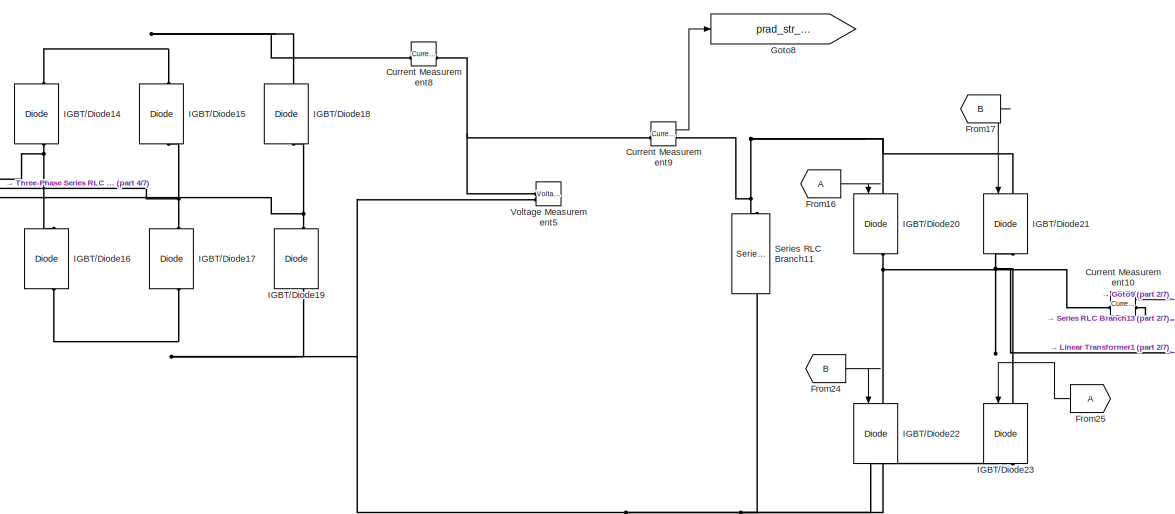
[diagram: root canvas - part 1/7, top left region]
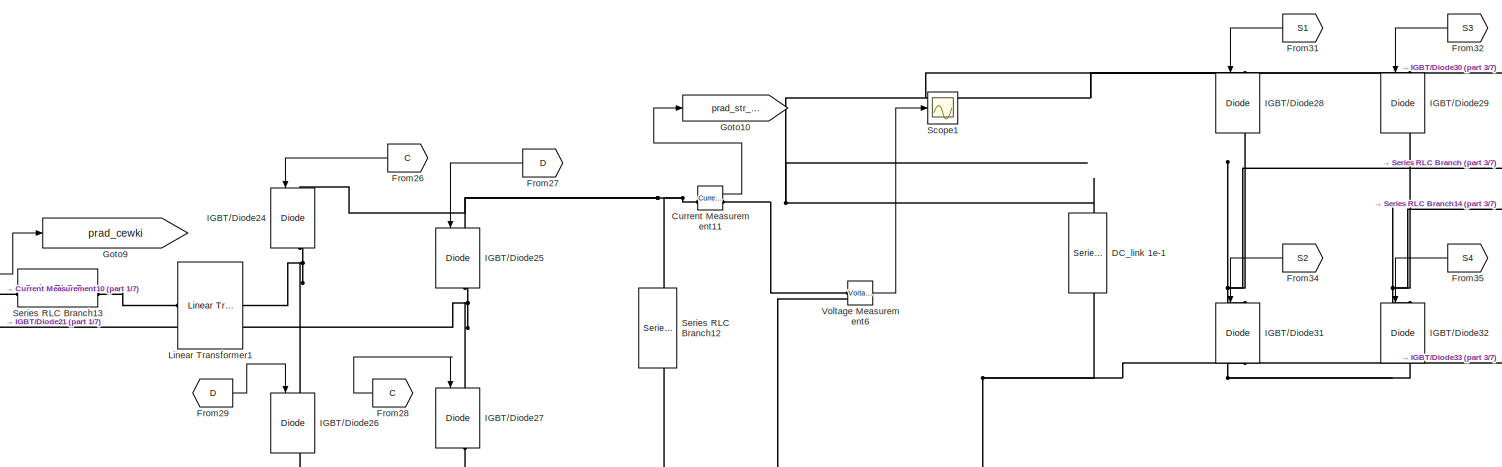
[diagram: root canvas - part 2/7, top center region]
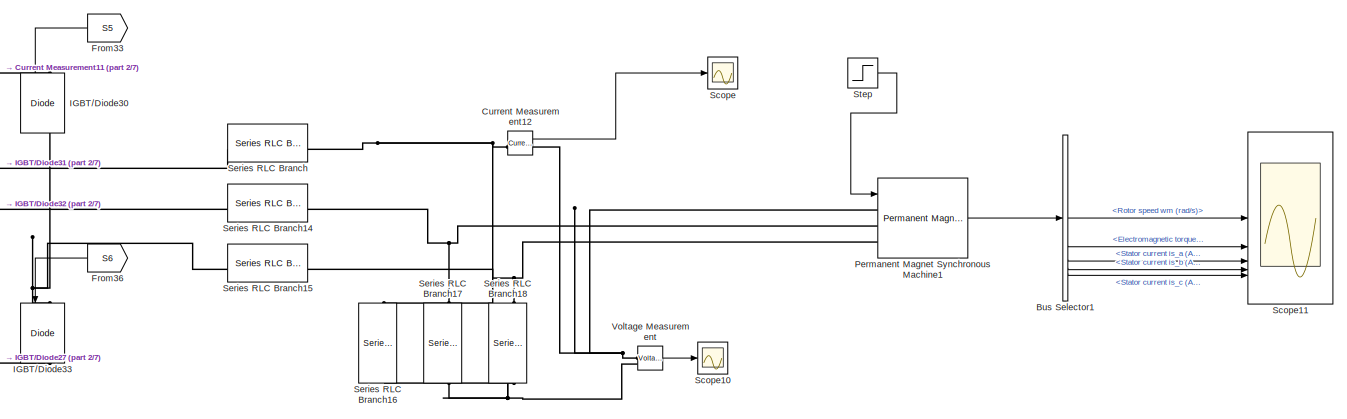
[diagram: root canvas - part 3/7, top right region]
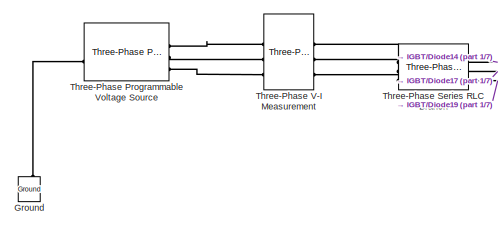
[diagram: root canvas - part 4/7, top left region]
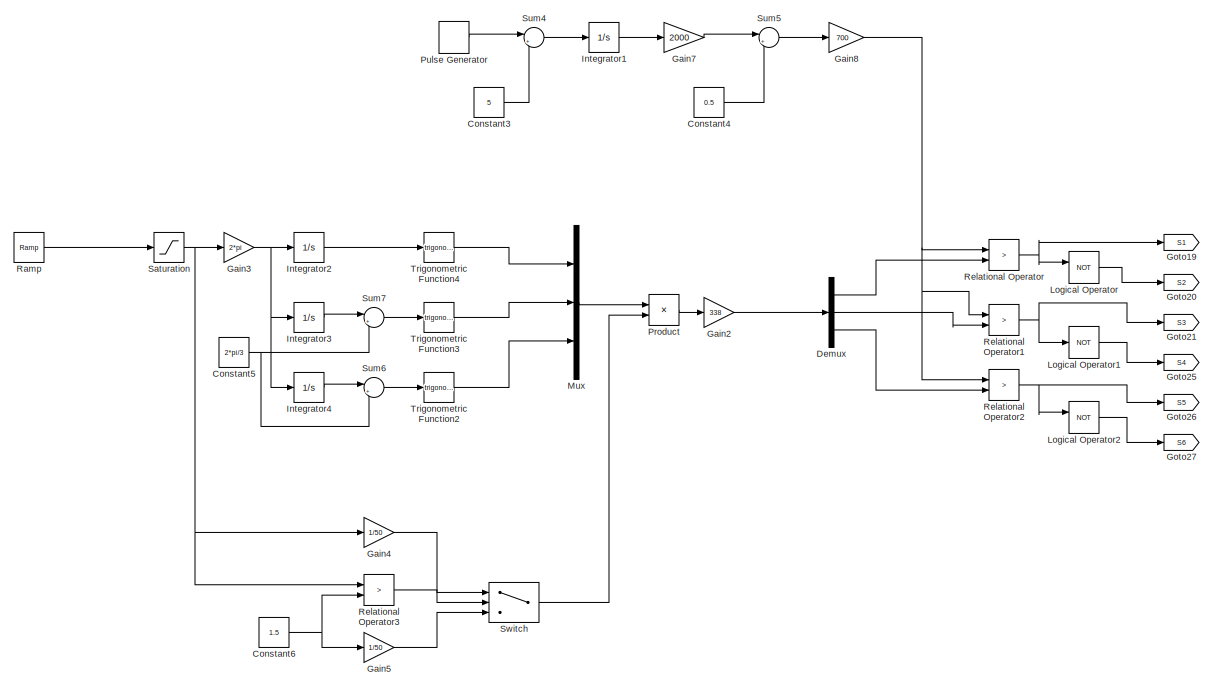
[diagram: root canvas - part 5/7, middle right region]
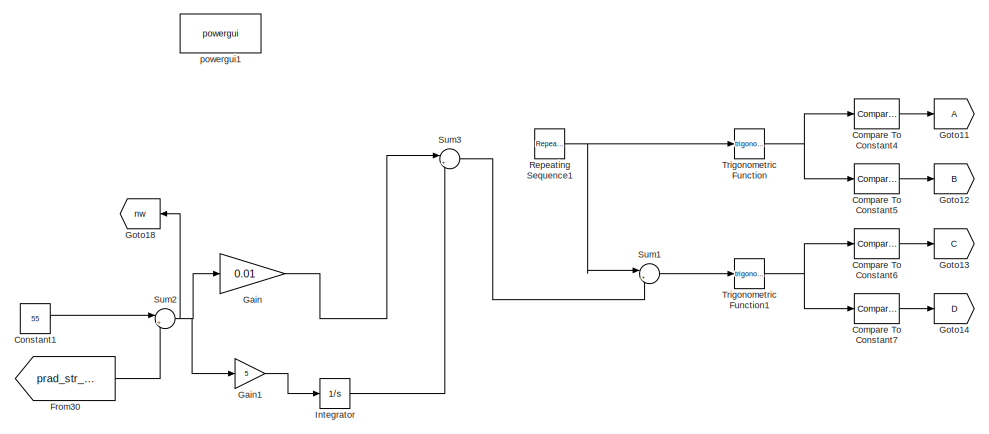
[diagram: root canvas - part 6/7, central region]
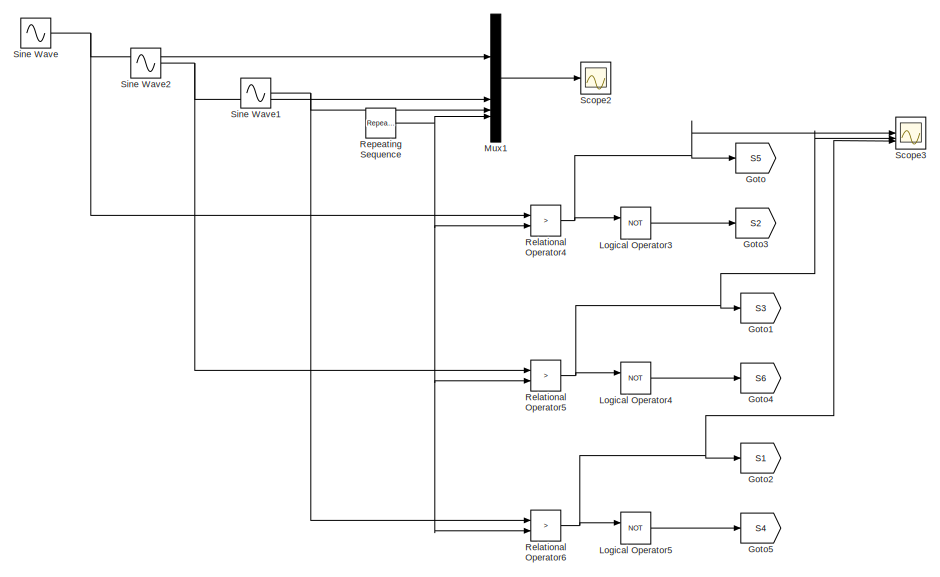
[diagram: root canvas - part 7/7, bottom center region]
MODEL slx_3110d4d27b88
KIND model
CONFIG AbsTol = auto
CONFIG EnableMultiTasking = off
CONFIG FixedStep = 1e-7
CONFIG MaxStep = auto
CONFIG MinStep = auto
CONFIG RelTol = 1e-3
CONFIG SampleTimeConstraint = Unconstrained
CONFIG SolverName = ode1
CONFIG StartTime = 0.0
CONFIG StopTime = 0.1
BLOCK [BusSelector] Bus Selector1
  OutputSignals = Rotor speed wm (rad/s),Electromagnetic torque Te (N*m),Stator current is_a (A),Stator current is_b (A),Stator current is_c (A)
BLOCK [Reference] Compare To Constant4  REF=simulink/Logic and Bit
Operations/Compare
To Constant
  SourceBlock = simulink/Logic and Bit\nOperations/Compare\nTo Constant
  SourceType = Compare To Constant
BLOCK [Reference] Compare To Constant5  REF=simulink/Logic and Bit
Operations/Compare
To Constant
  SourceBlock = simulink/Logic and Bit\nOperations/Compare\nTo Constant
  SourceType = Compare To Constant
BLOCK [Reference] Compare To Constant6  REF=simulink/Logic and Bit
Operations/Compare
To Constant
  SourceBlock = simulink/Logic and Bit\nOperations/Compare\nTo Constant
  SourceType = Compare To Constant
BLOCK [Reference] Compare To Constant7  REF=simulink/Logic and Bit
Operations/Compare
To Constant
  SourceBlock = simulink/Logic and Bit\nOperations/Compare\nTo Constant
  SourceType = Compare To Constant
BLOCK [Constant] Constant1
  Value = 55
BLOCK [Constant] Constant3
  Commented = on
  Value = 5
BLOCK [Constant] Constant4
  Commented = on
  Value = 0.5
BLOCK [Constant] Constant5
  Commented = on
  Value = 2*pi/3
BLOCK [Constant] Constant6
  Commented = on
  Value = 1.5
BLOCK [Reference] Current Measurement10  REF=spsCurrentMeasurementLib/Current Measurement
  SourceBlock = spsCurrentMeasurementLib/Current Measurement
  SourceType = Current Measurement
  UserDataPersistent = on
BLOCK [Reference] Current Measurement11  REF=spsCurrentMeasurementLib/Current Measurement
  SourceBlock = spsCurrentMeasurementLib/Current Measurement
  SourceType = Current Measurement
  UserDataPersistent = on
BLOCK [Reference] Current Measurement12  REF=spsCurrentMeasurementLib/Current Measurement
  SourceBlock = spsCurrentMeasurementLib/Current Measurement
  SourceType = Current Measurement
  UserDataPersistent = on
BLOCK [Reference] Current Measurement8  REF=spsCurrentMeasurementLib/Current Measurement
  SourceBlock = spsCurrentMeasurementLib/Current Measurement
  SourceType = Current Measurement
  UserDataPersistent = on
BLOCK [Reference] Current Measurement9  REF=spsCurrentMeasurementLib/Current Measurement
  SourceBlock = spsCurrentMeasurementLib/Current Measurement
  SourceType = Current Measurement
  UserDataPersistent = on
BLOCK [Reference] DC_link 1e-1  REF=spsSeriesRLCBranchLib/Series RLC Branch
  NameLocation = left
  SourceBlock = spsSeriesRLCBranchLib/Series RLC Branch
  SourceType = Series RLC Branch
BLOCK [Demux] Demux
  Commented = on
  Outputs = 3
BLOCK [From] From16
BLOCK [From] From17
  GotoTag = B
BLOCK [From] From24
  GotoTag = B
BLOCK [From] From25
  NameLocation = top
BLOCK [From] From26
  GotoTag = C
  NameLocation = top
BLOCK [From] From27
  GotoTag = D
  NameLocation = top
BLOCK [From] From28
  GotoTag = C
  NameLocation = top
BLOCK [From] From29
  GotoTag = D
BLOCK [From] From30
  GotoTag = prad_str_wtorna
BLOCK [From] From31
  GotoTag = S1
  NameLocation = top
BLOCK [From] From32
  GotoTag = S3
  NameLocation = top
BLOCK [From] From33
  GotoTag = S5
  NameLocation = top
BLOCK [From] From34
  GotoTag = S2
  NameLocation = top
BLOCK [From] From35
  GotoTag = S4
  NameLocation = top
BLOCK [From] From36
  GotoTag = S6
  NameLocation = top
BLOCK [Gain] Gain
  Gain = 0.01
BLOCK [Gain] Gain1
  Gain = 5
BLOCK [Gain] Gain2
  Commented = on
  Gain = 338
BLOCK [Gain] Gain3
  Commented = on
  Gain = 2*pi
BLOCK [Gain] Gain4
  Commented = on
  Gain = 1/50
BLOCK [Gain] Gain5
  Commented = on
  Gain = 1/50
BLOCK [Gain] Gain7
  Commented = on
  Gain = 2000
BLOCK [Gain] Gain8
  Commented = on
  Gain = 700
BLOCK [Goto] Goto
  GotoTag = S5
BLOCK [Goto] Goto1
  GotoTag = S3
BLOCK [Goto] Goto10
  GotoTag = prad_str_wtorna
BLOCK [Goto] Goto11
BLOCK [Goto] Goto12
  GotoTag = B
BLOCK [Goto] Goto13
  GotoTag = C
BLOCK [Goto] Goto14
  GotoTag = D
BLOCK [Goto] Goto18
  GotoTag = nw
  NameLocation = top
BLOCK [Goto] Goto19
  Commented = on
  GotoTag = S1
BLOCK [Goto] Goto2
  GotoTag = S1
BLOCK [Goto] Goto20
  Commented = on
  GotoTag = S2
BLOCK [Goto] Goto21
  Commented = on
  GotoTag = S3
BLOCK [Goto] Goto25
  Commented = on
  GotoTag = S4
BLOCK [Goto] Goto26
  Commented = on
  GotoTag = S5
BLOCK [Goto] Goto27
  Commented = on
  GotoTag = S6
BLOCK [Goto] Goto3
  GotoTag = S2
BLOCK [Goto] Goto4
  GotoTag = S6
BLOCK [Goto] Goto5
  GotoTag = S4
BLOCK [Goto] Goto8
  GotoTag = prad_str_pierwotna
BLOCK [Goto] Goto9
  GotoTag = prad_cewki
BLOCK [Reference] Ground  REF=spsGroundLib/Ground
  LibrarySourceBlock = sps_lib/Utilities/Ground
  NameLocation = right
  SourceBlock = spsGroundLib/Ground
  SourceType = Ground
BLOCK [Reference] IGBT//Diode14  REF=spsIGBTDiodeLib/IGBT//Diode
  NameLocation = left
  SourceBlock = spsIGBTDiodeLib/IGBT//Diode
  SourceType = IGBT/Diode
BLOCK [Reference] IGBT//Diode15  REF=spsIGBTDiodeLib/IGBT//Diode
  NameLocation = left
  SourceBlock = spsIGBTDiodeLib/IGBT//Diode
  SourceType = IGBT/Diode
BLOCK [Reference] IGBT//Diode16  REF=spsIGBTDiodeLib/IGBT//Diode
  NameLocation = left
  SourceBlock = spsIGBTDiodeLib/IGBT//Diode
  SourceType = IGBT/Diode
BLOCK [Reference] IGBT//Diode17  REF=spsIGBTDiodeLib/IGBT//Diode
  NameLocation = left
  SourceBlock = spsIGBTDiodeLib/IGBT//Diode
  SourceType = IGBT/Diode
BLOCK [Reference] IGBT//Diode18  REF=spsIGBTDiodeLib/IGBT//Diode
  NameLocation = left
  SourceBlock = spsIGBTDiodeLib/IGBT//Diode
  SourceType = IGBT/Diode
BLOCK [Reference] IGBT//Diode19  REF=spsIGBTDiodeLib/IGBT//Diode
  NameLocation = left
  SourceBlock = spsIGBTDiodeLib/IGBT//Diode
  SourceType = IGBT/Diode
BLOCK [Reference] IGBT//Diode20  REF=spsIGBTDiodeLib/IGBT//Diode
  NameLocation = left
  SourceBlock = spsIGBTDiodeLib/IGBT//Diode
  SourceType = IGBT/Diode
BLOCK [Reference] IGBT//Diode21  REF=spsIGBTDiodeLib/IGBT//Diode
  NameLocation = left
  SourceBlock = spsIGBTDiodeLib/IGBT//Diode
  SourceType = IGBT/Diode
BLOCK [Reference] IGBT//Diode22  REF=spsIGBTDiodeLib/IGBT//Diode
  NameLocation = left
  SourceBlock = spsIGBTDiodeLib/IGBT//Diode
  SourceType = IGBT/Diode
BLOCK [Reference] IGBT//Diode23  REF=spsIGBTDiodeLib/IGBT//Diode
  NameLocation = left
  SourceBlock = spsIGBTDiodeLib/IGBT//Diode
  SourceType = IGBT/Diode
BLOCK [Reference] IGBT//Diode24  REF=spsIGBTDiodeLib/IGBT//Diode
  NameLocation = left
  SourceBlock = spsIGBTDiodeLib/IGBT//Diode
  SourceType = IGBT/Diode
BLOCK [Reference] IGBT//Diode25  REF=spsIGBTDiodeLib/IGBT//Diode
  NameLocation = left
  SourceBlock = spsIGBTDiodeLib/IGBT//Diode
  SourceType = IGBT/Diode
BLOCK [Reference] IGBT//Diode26  REF=spsIGBTDiodeLib/IGBT//Diode
  NameLocation = left
  SourceBlock = spsIGBTDiodeLib/IGBT//Diode
  SourceType = IGBT/Diode
BLOCK [Reference] IGBT//Diode27  REF=spsIGBTDiodeLib/IGBT//Diode
  NameLocation = left
  SourceBlock = spsIGBTDiodeLib/IGBT//Diode
  SourceType = IGBT/Diode
BLOCK [Reference] IGBT//Diode28  REF=spsIGBTDiodeLib/IGBT//Diode
  NameLocation = right
  SourceBlock = spsIGBTDiodeLib/IGBT//Diode
  SourceType = IGBT/Diode
BLOCK [Reference] IGBT//Diode29  REF=spsIGBTDiodeLib/IGBT//Diode
  NameLocation = right
  SourceBlock = spsIGBTDiodeLib/IGBT//Diode
  SourceType = IGBT/Diode
BLOCK [Reference] IGBT//Diode30  REF=spsIGBTDiodeLib/IGBT//Diode
  NameLocation = right
  SourceBlock = spsIGBTDiodeLib/IGBT//Diode
  SourceType = IGBT/Diode
BLOCK [Reference] IGBT//Diode31  REF=spsIGBTDiodeLib/IGBT//Diode
  NameLocation = right
  SourceBlock = spsIGBTDiodeLib/IGBT//Diode
  SourceType = IGBT/Diode
BLOCK [Reference] IGBT//Diode32  REF=spsIGBTDiodeLib/IGBT//Diode
  NameLocation = right
  SourceBlock = spsIGBTDiodeLib/IGBT//Diode
  SourceType = IGBT/Diode
BLOCK [Reference] IGBT//Diode33  REF=spsIGBTDiodeLib/IGBT//Diode
  NameLocation = right
  SourceBlock = spsIGBTDiodeLib/IGBT//Diode
  SourceType = IGBT/Diode
BLOCK [Integrator] Integrator
BLOCK [Integrator] Integrator1
  Commented = on
BLOCK [Integrator] Integrator2
  Commented = on
BLOCK [Integrator] Integrator3
  Commented = on
BLOCK [Integrator] Integrator4
  Commented = on
BLOCK [Reference] Linear Transformer1  REF=spsLinearTransformerLib/Linear Transformer
  SourceBlock = spsLinearTransformerLib/Linear Transformer
  SourceType = Linear Transformer
BLOCK [Logic] Logical Operator
  AllPortsSameDT = off
  Commented = on
  Operator = NOT
  OutDataTypeStr = boolean
BLOCK [Logic] Logical Operator1
  AllPortsSameDT = off
  Commented = on
  Inputs = 1
  Operator = NOT
  OutDataTypeStr = boolean
BLOCK [Logic] Logical Operator2
  AllPortsSameDT = off
  Commented = on
  Operator = NOT
  OutDataTypeStr = boolean
BLOCK [Logic] Logical Operator3
  AllPortsSameDT = off
  Operator = NOT
  OutDataTypeStr = boolean
BLOCK [Logic] Logical Operator4
  AllPortsSameDT = off
  Operator = NOT
  OutDataTypeStr = boolean
BLOCK [Logic] Logical Operator5
  AllPortsSameDT = off
  Operator = NOT
  OutDataTypeStr = boolean
BLOCK [Mux] Mux
  Commented = on
  DisplayOption = bar
  Inputs = 3
BLOCK [Mux] Mux1
  DisplayOption = bar
BLOCK [Reference] Permanent Magnet Synchronous Machine1  REF=spsPermanentMagnetSynchronousMachineLib/Permanent Magnet
Synchronous Machine
  LibrarySourceBlock = sps_lib/Electrical Machines/Permanent Magnet\nSynchronous Machine
  SourceBlock = spsPermanentMagnetSynchronousMachineLib/Permanent Magnet\nSynchronous Machine
  SourceType = Permanent Magnet Synchronous Machine
BLOCK [Product] Product
  Commented = on
BLOCK [DiscretePulseGenerator] Pulse Generator
  Amplitude = 10
  Commented = on
  Period = 2e-4
  PulseType = Time based
  PulseWidth = 50
BLOCK [Reference] Ramp  REF=simulink/Sources/Ramp
  Commented = on
  SourceBlock = simulink/Sources/Ramp
  SourceType = Ramp
BLOCK [RelationalOperator] Relational Operator
  Commented = on
  InputSameDT = off
  Operator = >
  OutDataTypeStr = boolean
  RndMeth = Simplest
BLOCK [RelationalOperator] Relational Operator1
  Commented = on
  InputSameDT = off
  Operator = >
  OutDataTypeStr = boolean
  RndMeth = Simplest
BLOCK [RelationalOperator] Relational Operator2
  Commented = on
  InputSameDT = off
  Operator = >
  OutDataTypeStr = boolean
  RndMeth = Simplest
BLOCK [RelationalOperator] Relational Operator3
  Commented = on
  InputSameDT = off
  Operator = >
  OutDataTypeStr = boolean
  RndMeth = Simplest
BLOCK [RelationalOperator] Relational Operator4
  InputSameDT = off
  Operator = >
  OutDataTypeStr = boolean
  RndMeth = Simplest
BLOCK [RelationalOperator] Relational Operator5
  InputSameDT = off
  Operator = >
  OutDataTypeStr = boolean
  RndMeth = Simplest
BLOCK [RelationalOperator] Relational Operator6
  InputSameDT = off
  Operator = >
  OutDataTypeStr = boolean
  RndMeth = Simplest
BLOCK [Reference] Repeating Sequence  REF=simulink/Sources/Repeating
Sequence
  SourceBlock = simulink/Sources/Repeating\nSequence
  SourceType = Repeating table
BLOCK [Reference] Repeating Sequence1  REF=simulink/Sources/Repeating
Sequence
  SourceBlock = simulink/Sources/Repeating\nSequence
  SourceType = Repeating table
BLOCK [Saturate] Saturation
  Commented = on
  LowerLimit = 0
  UpperLimit = 50
BLOCK [Scope] Scope
  Floating = off
  NumInputPorts = 1
  ScopeSpecificationString = Simulink.scopes.TimeScopeBlockCfg('CurrentConfiguration', extmgr.ConfigurationSet(extmgr.Configuration('Core','General UI',true),extmgr.Configuration('Core','Source UI',true),extmgr.Configuration('Sources','WiredSimulink',true,'DataLoggingVariableName','ScopeData1'),extmgr.Configuration('Visuals','Time Domain',true,'SerializedDisplays',{struct('MinYLimReal','-69424856327000586214060381833842255775...<+3280ch>
BLOCK [Scope] Scope1
  Floating = off
  NumInputPorts = 1
  ScopeSpecificationString = Simulink.scopes.TimeScopeBlockCfg('CurrentConfiguration', extmgr.ConfigurationSet(extmgr.Configuration('Core','General UI',true),extmgr.Configuration('Core','Source UI',true),extmgr.Configuration('Sources','WiredSimulink',true,'DataLoggingVariableName','ScopeData1'),extmgr.Configuration('Visuals','Time Domain',true,'SerializedDisplays',{struct('MinYLimReal','-10508020209103994780406091107323774427...<+2521ch>
BLOCK [Scope] Scope10
  Floating = off
  NumInputPorts = 1
  ScopeSpecificationString = Simulink.scopes.TimeScopeBlockCfg('CurrentConfiguration', extmgr.ConfigurationSet(extmgr.Configuration('Core','General UI',true),extmgr.Configuration('Core','Source UI',true),extmgr.Configuration('Sources','WiredSimulink',true,'DataLoggingVariableName','ScopeData2'),extmgr.Configuration('Visuals','Time Domain',true,'SerializedDisplays',{struct('MinYLimReal','-77138729252222875177728365213832904682...<+3276ch>
BLOCK [Scope] Scope11
  Floating = off
  NumInputPorts = 5
  ScopeSpecificationString = Simulink.scopes.TimeScopeBlockCfg('CurrentConfiguration', extmgr.ConfigurationSet(extmgr.Configuration('Core','General UI',true),extmgr.Configuration('Core','Source UI',true),extmgr.Configuration('Sources','WiredSimulink',true,'DataLoggingVariableName','ScopeData3'),extmgr.Configuration('Visuals','Time Domain',true,'SerializedDisplays',{struct('MinYLimReal','-21.48347','MaxYLimReal','182.3466','YL...<+3671ch>
BLOCK [Scope] Scope2
  Floating = off
  NumInputPorts = 1
  ScopeSpecificationString = Simulink.scopes.TimeScopeBlockCfg('CurrentConfiguration', extmgr.ConfigurationSet(extmgr.Configuration('Core','General UI',true),extmgr.Configuration('Core','Source UI',true),extmgr.Configuration('Sources','WiredSimulink',true,'DataLoggingVariableName','ScopeData2'),extmgr.Configuration('Visuals','Time Domain',true,'SerializedDisplays',{struct('MinYLimReal','-1.12303','MaxYLimReal','1.2495','YLabe...<+1467ch>
BLOCK [Scope] Scope3
  Floating = off
  NumInputPorts = 3
  ScopeSpecificationString = Simulink.scopes.TimeScopeBlockCfg('CurrentConfiguration', extmgr.ConfigurationSet(extmgr.Configuration('Core','General UI',true),extmgr.Configuration('Core','Source UI',true),extmgr.Configuration('Sources','WiredSimulink',true,'DataLoggingVariableName','ScopeData3'),extmgr.Configuration('Visuals','Time Domain',true,'SerializedDisplays',{struct('MinYLimReal','-0.9105','MaxYLimReal','1.13706','YLabe...<+2808ch>
BLOCK [Reference] Series RLC Branch  REF=spsSeriesRLCBranchLib/Series RLC Branch
  SourceBlock = spsSeriesRLCBranchLib/Series RLC Branch
  SourceType = Series RLC Branch
BLOCK [Reference] Series RLC Branch11  REF=spsSeriesRLCBranchLib/Series RLC Branch
  NameLocation = left
  SourceBlock = spsSeriesRLCBranchLib/Series RLC Branch
  SourceType = Series RLC Branch
BLOCK [Reference] Series RLC Branch12  REF=spsSeriesRLCBranchLib/Series RLC Branch
  NameLocation = left
  SourceBlock = spsSeriesRLCBranchLib/Series RLC Branch
  SourceType = Series RLC Branch
BLOCK [Reference] Series RLC Branch13  REF=spsSeriesRLCBranchLib/Series RLC Branch
  NameLocation = top
  SourceBlock = spsSeriesRLCBranchLib/Series RLC Branch
  SourceType = Series RLC Branch
BLOCK [Reference] Series RLC Branch14  REF=spsSeriesRLCBranchLib/Series RLC Branch
  SourceBlock = spsSeriesRLCBranchLib/Series RLC Branch
  SourceType = Series RLC Branch
BLOCK [Reference] Series RLC Branch15  REF=spsSeriesRLCBranchLib/Series RLC Branch
  SourceBlock = spsSeriesRLCBranchLib/Series RLC Branch
  SourceType = Series RLC Branch
BLOCK [Reference] Series RLC Branch16  REF=spsSeriesRLCBranchLib/Series RLC Branch
  NameLocation = left
  SourceBlock = spsSeriesRLCBranchLib/Series RLC Branch
  SourceType = Series RLC Branch
BLOCK [Reference] Series RLC Branch17  REF=spsSeriesRLCBranchLib/Series RLC Branch
  NameLocation = left
  SourceBlock = spsSeriesRLCBranchLib/Series RLC Branch
  SourceType = Series RLC Branch
BLOCK [Reference] Series RLC Branch18  REF=spsSeriesRLCBranchLib/Series RLC Branch
  NameLocation = left
  SourceBlock = spsSeriesRLCBranchLib/Series RLC Branch
  SourceType = Series RLC Branch
BLOCK [Sin] Sine Wave
  Frequency = 2*pi*50
  SampleTime = 0
BLOCK [Sin] Sine Wave1
  Frequency = 2*pi*50
  Phase = 2*pi/3
  SampleTime = 0
BLOCK [Sin] Sine Wave2
  Frequency = 2*pi*50
  Phase = 4*pi/3
  SampleTime = 0
BLOCK [Step] Step
  After = 3
  Before = 1
  SampleTime = 0
  Time = 0.2
BLOCK [Sum] Sum1
  Inputs = |++
BLOCK [Sum] Sum2
  Inputs = |+-
BLOCK [Sum] Sum3
  Inputs = |++
BLOCK [Sum] Sum4
  Commented = on
  Inputs = |+-
BLOCK [Sum] Sum5
  Commented = on
  Inputs = |+-
BLOCK [Sum] Sum6
  Commented = on
  Inputs = |++
BLOCK [Sum] Sum7
  Commented = on
  Inputs = |+-
BLOCK [Switch] Switch
  Commented = on
  Criteria = u2 > Threshold
  InputSameDT = off
  SaturateOnIntegerOverflow = off
  ZeroCross = off
BLOCK [Reference] Three-Phase Programmable Voltage Source  REF=spsThreePhaseProgrammableVoltageSourceLib/Three-Phase
Programmable
Voltage Source
  LibrarySourceBlock = sps_lib/Sources/Three-Phase\nProgrammable\nVoltage Source
  SourceBlock = spsThreePhaseProgrammableVoltageSourceLib/Three-Phase\nProgrammable\nVoltage Source
  SourceType = Three-Phase Programmable Voltage Source
BLOCK [Reference] Three-Phase Series RLC Branch  REF=spsThreePhaseSeriesRLCBranchLib/Three-Phase
Series RLC Branch
  AttributesFormatString = \n
  LibrarySourceBlock = sps_lib/Passives/Three-Phase\nSeries RLC Branch
  SourceBlock = spsThreePhaseSeriesRLCBranchLib/Three-Phase\nSeries RLC Branch
  SourceType = Three-Phase Series RLC Branch
BLOCK [Reference] Three-Phase V-I Measurement  REF=spsThreePhaseVIMeasurementLib/Three-Phase
V-I Measurement
  LibrarySourceBlock = sps_lib/Sensors and Measurements/Three-Phase\nV-I Measurement
  SourceBlock = spsThreePhaseVIMeasurementLib/Three-Phase\nV-I Measurement
  SourceType = Three-Phase VI Measurement
BLOCK [Trigonometry] Trigonometric Function
BLOCK [Trigonometry] Trigonometric Function1
BLOCK [Trigonometry] Trigonometric Function2
  Commented = on
BLOCK [Trigonometry] Trigonometric Function3
  Commented = on
BLOCK [Trigonometry] Trigonometric Function4
  Commented = on
BLOCK [Reference] Voltage Measurement  REF=spsVoltageMeasurementLib/Voltage Measurement
  SourceBlock = spsVoltageMeasurementLib/Voltage Measurement
  SourceType = Voltage Measurement
  UserDataPersistent = on
BLOCK [Reference] Voltage Measurement5  REF=spsVoltageMeasurementLib/Voltage Measurement
  SourceBlock = spsVoltageMeasurementLib/Voltage Measurement
  SourceType = Voltage Measurement
  UserDataPersistent = on
BLOCK [Reference] Voltage Measurement6  REF=spsVoltageMeasurementLib/Voltage Measurement
  SourceBlock = spsVoltageMeasurementLib/Voltage Measurement
  SourceType = Voltage Measurement
  UserDataPersistent = on
BLOCK [Reference] powergui1  REF=spspowerguiLib/powergui
  Priority = 1
  SourceBlock = spspowerguiLib/powergui
  SourceType = PSB option menu block
LINE Bus Selector1:1 -> Scope11:1
LINE Bus Selector1:2 -> Scope11:2
LINE Bus Selector1:3 -> Scope11:3
LINE Bus Selector1:4 -> Scope11:4
LINE Bus Selector1:5 -> Scope11:5
LINE Compare To Constant4:1 -> Goto11:1
LINE Compare To Constant5:1 -> Goto12:1
LINE Compare To Constant6:1 -> Goto13:1
LINE Compare To Constant7:1 -> Goto14:1
LINE Constant1:1 -> Sum2:1
LINE Constant3:1 -> Sum4:2
LINE Constant4:1 -> Sum5:2
NET Constant5:1 -> Sum6:2, Sum7:2
NET Constant6:1 -> Gain5:1, Relational Operator3:2
LINE Current Measurement10:1 -> Goto9:1
LINE Current Measurement11:1 -> Goto10:1
LINE Current Measurement12:1 -> Scope:1
LINE Current Measurement9:1 -> Goto8:1
LINE Demux:1 -> Relational Operator:2
LINE Demux:2 -> Relational Operator1:2
LINE Demux:3 -> Relational Operator2:2
LINE From16:1 -> IGBT//Diode20:1
LINE From17:1 -> IGBT//Diode21:1
LINE From24:1 -> IGBT//Diode22:1
LINE From25:1 -> IGBT//Diode23:1
LINE From26:1 -> IGBT//Diode24:1
LINE From27:1 -> IGBT//Diode25:1
LINE From28:1 -> IGBT//Diode27:1
LINE From29:1 -> IGBT//Diode26:1
LINE From30:1 -> Sum2:2
LINE From31:1 -> IGBT//Diode28:1
LINE From32:1 -> IGBT//Diode29:1
LINE From33:1 -> IGBT//Diode30:1
LINE From34:1 -> IGBT//Diode31:1
LINE From35:1 -> IGBT//Diode32:1
LINE From36:1 -> IGBT//Diode33:1
LINE Gain1:1 -> Integrator:1
LINE Gain2:1 -> Demux:1
NET Gain3:1 -> Integrator2:1, Integrator3:1, Integrator4:1
LINE Gain4:1 -> Switch:1
LINE Gain5:1 -> Switch:3
LINE Gain7:1 -> Sum5:1
NET Gain8:1 -> Relational Operator1:1, Relational Operator2:1, Relational Operator:1
LINE Gain:1 -> Sum3:1
LINE Integrator1:1 -> Gain7:1
LINE Integrator2:1 -> Trigonometric Function4:1
LINE Integrator3:1 -> Sum7:1
LINE Integrator4:1 -> Sum6:1
LINE Integrator:1 -> Sum3:2
LINE Logical Operator1:1 -> Goto25:1
LINE Logical Operator2:1 -> Goto27:1
LINE Logical Operator3:1 -> Goto3:1
LINE Logical Operator4:1 -> Goto4:1
LINE Logical Operator5:1 -> Goto5:1
LINE Logical Operator:1 -> Goto20:1
LINE Mux1:1 -> Scope2:1
LINE Mux:1 -> Product:1
LINE Permanent Magnet Synchronous Machine1:1 -> Bus Selector1:1
LINE Product:1 -> Gain2:1
LINE Pulse Generator:1 -> Sum4:1
LINE Ramp:1 -> Saturation:1
NET Relational Operator1:1 -> Goto21:1, Logical Operator1:1
NET Relational Operator2:1 -> Goto26:1, Logical Operator2:1
LINE Relational Operator3:1 -> Switch:2
NET Relational Operator4:1 -> Goto:1, Logical Operator3:1, Scope3:1
NET Relational Operator5:1 -> Goto1:1, Logical Operator4:1, Scope3:2
NET Relational Operator6:1 -> Goto2:1, Logical Operator5:1, Scope3:3
NET Relational Operator:1 -> Goto19:1, Logical Operator:1
NET Repeating Sequence1:1 -> Sum1:1, Trigonometric Function:1
NET Repeating Sequence:1 -> Mux1:4, Relational Operator4:2, Relational Operator5:2, Relational Operator6:2
NET Saturation:1 -> Gain3:1, Gain4:1, Relational Operator3:1
NET Sine Wave1:1 -> Mux1:3, Relational Operator6:1
NET Sine Wave2:1 -> Mux1:2, Relational Operator5:1
NET Sine Wave:1 -> Mux1:1, Relational Operator4:1
LINE Step:1 -> Permanent Magnet Synchronous Machine1:1
LINE Sum1:1 -> Trigonometric Function1:1
NET Sum2:1 -> Gain1:1, Gain:1, Goto18:1
LINE Sum3:1 -> Sum1:2
LINE Sum4:1 -> Integrator1:1
LINE Sum5:1 -> Gain8:1
LINE Sum6:1 -> Trigonometric Function2:1
LINE Sum7:1 -> Trigonometric Function3:1
LINE Switch:1 -> Product:2
NET Trigonometric Function1:1 -> Compare To Constant6:1, Compare To Constant7:1
LINE Trigonometric Function2:1 -> Mux:3
LINE Trigonometric Function3:1 -> Mux:2
LINE Trigonometric Function4:1 -> Mux:1
NET Trigonometric Function:1 -> Compare To Constant4:1, Compare To Constant5:1
LINE Voltage Measurement6:1 -> Scope1:1
LINE Voltage Measurement:1 -> Scope10:1
PNET net1: Current Measurement10:LConn1 -- IGBT//Diode20:RConn1 -- IGBT//Diode22:LConn1
PLINE Current Measurement10:RConn1 -- Series RLC Branch13:RConn1
PNET net2: Current Measurement11:LConn1 -- IGBT//Diode24:LConn1 -- IGBT//Diode25:LConn1 -- Series RLC Branch12:LConn1
PNET net3: Current Measurement11:RConn1 -- DC_link 1e-1:LConn1 -- IGBT//Diode28:LConn1 -- IGBT//Diode29:LConn1 -- IGBT//Diode30:LConn1 -- Voltage Measurement6:LConn1
PNET net4: Current Measurement12:LConn1 -- Series RLC Branch16:LConn1 -- Series RLC Branch:RConn1
PNET net5: Current Measurement12:RConn1 -- Permanent Magnet Synchronous Machine1:LConn1 -- Voltage Measurement:LConn1
PNET net6: Current Measurement8:LConn1 -- IGBT//Diode14:LConn1 -- IGBT//Diode15:LConn1 -- IGBT//Diode18:LConn1
PNET net7: Current Measurement8:RConn1 -- Current Measurement9:LConn1 -- Voltage Measurement5:LConn1
PNET net8: Current Measurement9:RConn1 -- IGBT//Diode20:LConn1 -- IGBT//Diode21:LConn1 -- Series RLC Branch11:LConn1
PNET net9: DC_link 1e-1:RConn1 -- IGBT//Diode26:RConn1 -- IGBT//Diode27:RConn1 -- IGBT//Diode31:RConn1 -- IGBT//Diode32:RConn1 -- IGBT//Diode33:RConn1 -- Series RLC Branch12:RConn1 -- Voltage Measurement6:LConn2
PLINE Ground:LConn1 -- Three-Phase Programmable Voltage Source:LConn1
PNET net10: IGBT//Diode14:RConn1 -- IGBT//Diode16:LConn1 -- Three-Phase Series RLC Branch:RConn1
PNET net11: IGBT//Diode15:RConn1 -- IGBT//Diode17:LConn1 -- Three-Phase Series RLC Branch:RConn2
PNET net12: IGBT//Diode16:RConn1 -- IGBT//Diode17:RConn1 -- IGBT//Diode19:RConn1 -- IGBT//Diode22:RConn1 -- IGBT//Diode23:RConn1 -- Series RLC Branch11:RConn1 -- Voltage Measurement5:LConn2
PNET net13: IGBT//Diode18:RConn1 -- IGBT//Diode19:LConn1 -- Three-Phase Series RLC Branch:RConn3
PNET net14: IGBT//Diode21:RConn1 -- IGBT//Diode23:LConn1 -- Linear Transformer1:LConn2
PNET net15: IGBT//Diode24:RConn1 -- IGBT//Diode26:LConn1 -- Linear Transformer1:RConn1
PNET net16: IGBT//Diode25:RConn1 -- IGBT//Diode27:LConn1 -- Linear Transformer1:RConn2
PNET net17: IGBT//Diode28:RConn1 -- IGBT//Diode31:LConn1 -- Series RLC Branch:LConn1
PNET net18: IGBT//Diode29:RConn1 -- IGBT//Diode32:LConn1 -- Series RLC Branch14:LConn1
PNET net19: IGBT//Diode30:RConn1 -- IGBT//Diode33:LConn1 -- Series RLC Branch15:LConn1
PLINE Linear Transformer1:LConn1 -- Series RLC Branch13:LConn1
PNET net20: Permanent Magnet Synchronous Machine1:LConn2 -- Series RLC Branch14:RConn1 -- Series RLC Branch17:LConn1
PNET net21: Permanent Magnet Synchronous Machine1:LConn3 -- Series RLC Branch15:RConn1 -- Series RLC Branch18:LConn1
PNET net22: Series RLC Branch16:RConn1 -- Series RLC Branch17:RConn1 -- Series RLC Branch18:RConn1 -- Voltage Measurement:LConn2
PLINE Three-Phase Programmable Voltage Source:RConn1 -- Three-Phase V-I Measurement:LConn1
PLINE Three-Phase Programmable Voltage Source:RConn2 -- Three-Phase V-I Measurement:LConn2
PLINE Three-Phase Programmable Voltage Source:RConn3 -- Three-Phase V-I Measurement:LConn3
PLINE Three-Phase Series RLC Branch:LConn1 -- Three-Phase V-I Measurement:RConn1
PLINE Three-Phase Series RLC Branch:LConn2 -- Three-Phase V-I Measurement:RConn2
PLINE Three-Phase Series RLC Branch:LConn3 -- Three-Phase V-I Measurement:RConn3
note: NET lines group one-source signal fan-out (src -> all destinations, sorted); 1:1 wires keep LINE; PNET lines group multi-terminal physical nets as a canonical sorted terminal list (undirected conserving connections); 2-terminal nets keep the pairwise PLINE form
